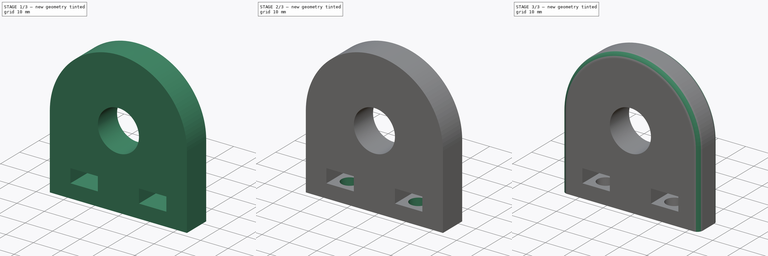
[diagram: build sequence overview — one tinted view per stage of 3, left to right]
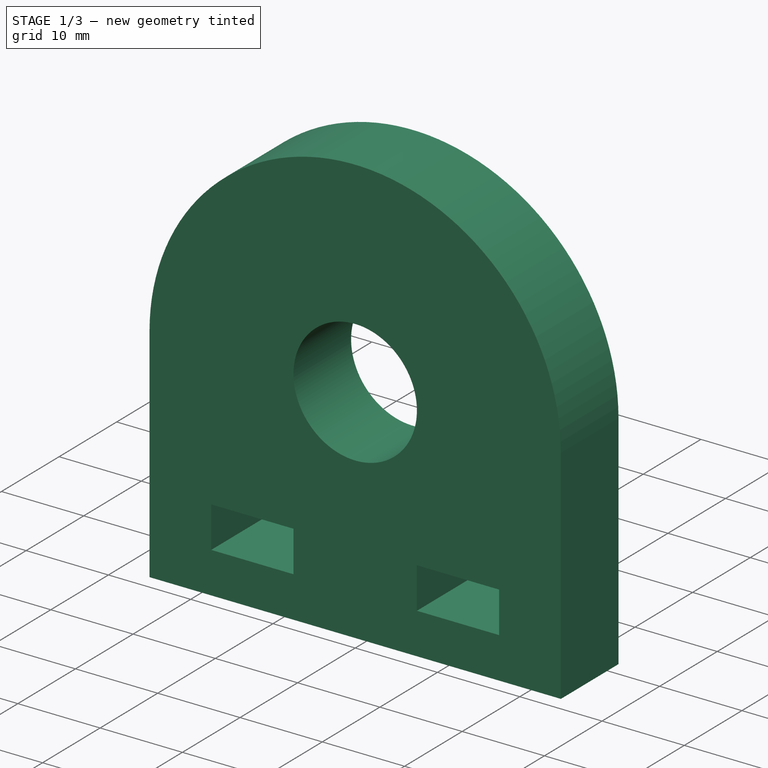
[diagram: stage 1 of 3 — iso view after this stage's code; geometry added in this stage tinted green]
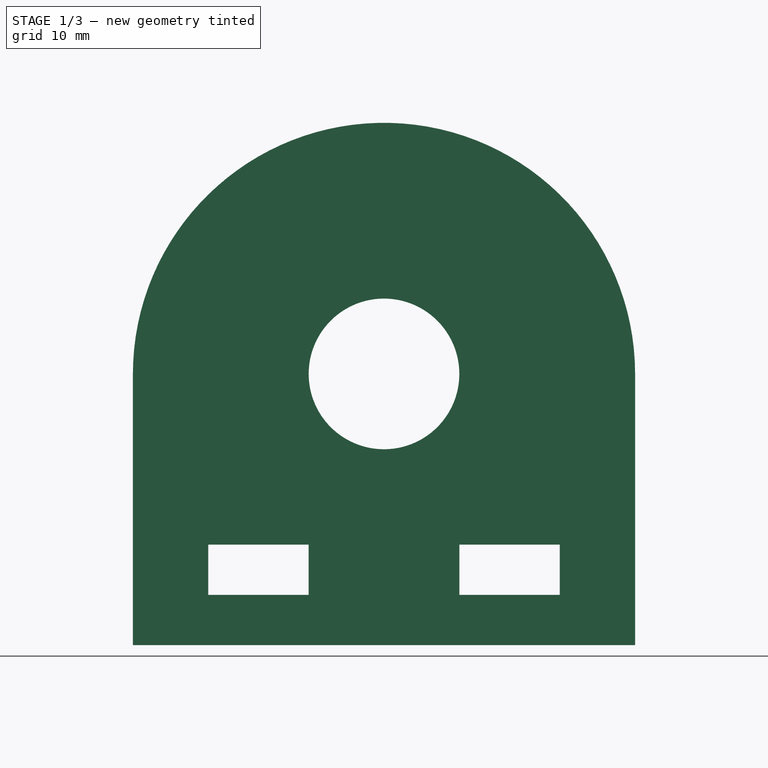
[diagram: stage 1 of 3 — front view after this stage's code; geometry added in this stage tinted green]
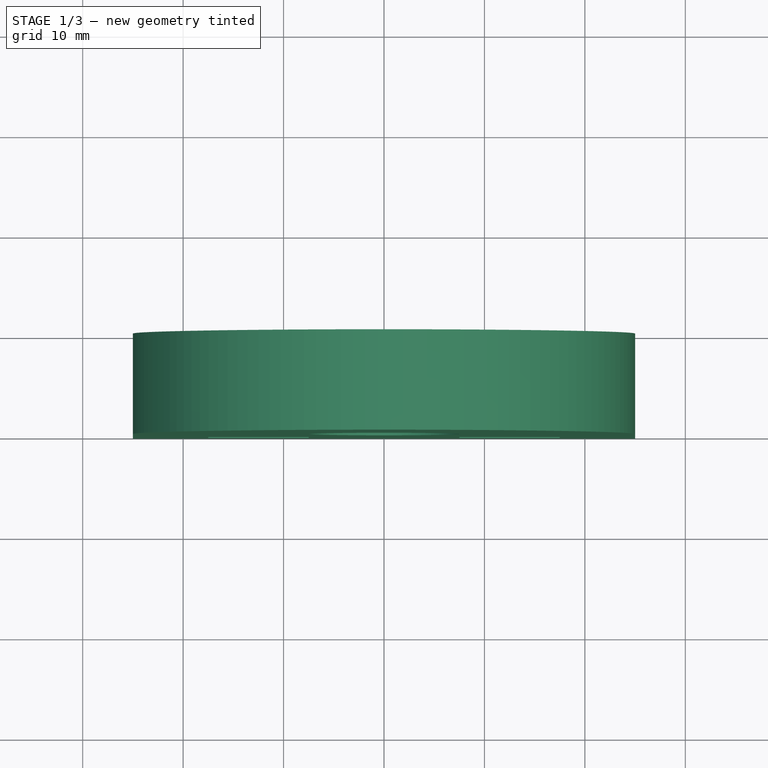
[diagram: stage 1 of 3 — top view after this stage's code; geometry added in this stage tinted green]
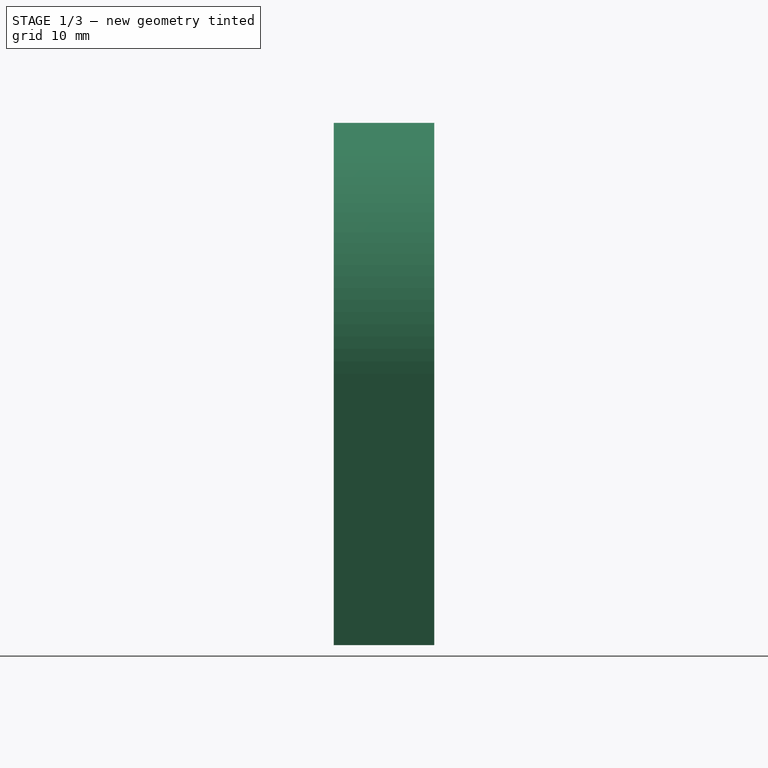
[diagram: stage 1 of 3 — right view after this stage's code; geometry added in this stage tinted green]
FCSTD DOCUMENT  (FreeCAD 0.20R29410 (Git))
Label: BeamMask
License: All rights reserved
LicenseURL: http://en.wikipedia.org/wiki/All_rights_reserved
objects: Sketcher::SketchObject×4, PartDesign::Pocket×3, PartDesign::Fillet×2, PartDesign::Pad×1, PartDesign::Body×1
note: 17 computed .brp shape members not serialized (recipe doc carries the construction recipe); baked Part::Feature solids carry a one-line shape summary decoded from their .brp

FEATURE [Sketcher::SketchObject] Sketch
  FullyConstrained = true
  MapMode = 5
  Placement = pos=(0,0,0) rot=(1,0,0;1.5708rad)
  sketch-geometry (6):
    g0: GeomPoint X=0 Y=27 Z=0
    g1: LineSegment StartX=-25 StartY=0 StartZ=0 EndX=-25 EndY=27 EndZ=0
    g2: ArcOfCircle CenterX=0 CenterY=27 CenterZ=0 NormalX=0 NormalY=0 NormalZ=1 AngleXU=0 Radius=25 StartAngle=0 EndAngle=3.14159
    g3: LineSegment StartX=25 StartY=27 StartZ=0 EndX=25 EndY=0 EndZ=0
    g4: LineSegment StartX=25 StartY=0 StartZ=0 EndX=-25 EndY=0 EndZ=0
    g5: Circle CenterX=0 CenterY=27 CenterZ=0 NormalX=0 NormalY=0 NormalZ=1 AngleXU=0 Radius=7.5
  constraints (15):
    c: PointOnObject(g0,g-2)
    c: PointOnObject(g1,g-1)
    c: Vertical(g1)
    c: Tangent(g1,g2) = 1.5708
    c: Coincident(g2,g3)
    c: PointOnObject(g3,g-1)
    c: Vertical(g3)
    c: Coincident(g3,g4)
    c: Coincident(g4,g1)
    c: Coincident(g2,g0)
    c: DistanceY(g-1,g0) = 27
    c: Distance(g4) = 50
    c: Horizontal(g1,g2)
    c: Coincident(g5,g2)
    c: Diameter(g5) = 15
FEATURE [Sketcher::SketchObject] Sketch002
  FullyConstrained = true
  MapMode = 5
  Placement = pos=(0,-10,-8.9e-15) rot=(1,0,0;1.5708rad)
  sketch-geometry (11):
    g0: LineSegment StartX=-17.5 StartY=10 StartZ=0 EndX=-7.5 EndY=10 EndZ=0
    g1: LineSegment StartX=-7.5 StartY=10 StartZ=0 EndX=-7.5 EndY=5 EndZ=0
    g2: LineSegment StartX=-7.5 StartY=5 StartZ=0 EndX=-17.5 EndY=5 EndZ=0
    g3: LineSegment StartX=-17.5 StartY=5 StartZ=0 EndX=-17.5 EndY=10 EndZ=0
    g4: LineSegment StartX=7.5 StartY=10 StartZ=0 EndX=17.5 EndY=10 EndZ=0
    g5: LineSegment StartX=17.5 StartY=10 StartZ=0 EndX=17.5 EndY=5 EndZ=0
    g6: LineSegment StartX=17.5 StartY=5 StartZ=0 EndX=7.5 EndY=5 EndZ=0
    g7: LineSegment StartX=7.5 StartY=5 StartZ=0 EndX=7.5 EndY=10 EndZ=0
    g8: LineSegment StartX=-12.5 StartY=-5.08223 StartZ=0 EndX=12.5 EndY=-5.08223 EndZ=0
    g9: LineSegment StartX=12.5 StartY=-2.61907 StartZ=0 EndX=12.5 EndY=-16.2522 EndZ=0
    g10: LineSegment StartX=-12.5 StartY=-2.55511 StartZ=0 EndX=-12.5 EndY=-17.2223 EndZ=0
  constraints (30):
    c: Coincident(g0,g1)
    c: Coincident(g1,g2)
    c: Coincident(g2,g3)
    c: Coincident(g3,g0)
    c: Horizontal(g0)
    c: Horizontal(g2)
    c: Vertical(g1)
    c: Vertical(g3)
    c: Coincident(g4,g5)
    c: Coincident(g5,g6)
    c: Coincident(g6,g7)
    c: Coincident(g7,g4)
    c: Horizontal(g4)
    c: Horizontal(g6)
    c: Vertical(g5)
    c: Vertical(g7)
    c: DistanceX(g8,g8) = 25
    c: Symmetric(g8,g8,g-2)
    c: PointOnObject(g8,g9)
    c: PointOnObject(g8,g10)
    c: Symmetric(g5,g6,g9)
    c: DistanceX(g6,g6) = 10
    c: Symmetric(g1,g2,g10)
    c: Equal(g7,g1)
    c: Symmetric(g6,g1,g-2)
    c: DistanceY(g5,g5) = 5
    c: Block(g10)
    c: Block(g9)
    c: DistanceY(g-1,g6) = 5
    c: Block(g8)
FEATURE [PartDesign::Pad] Pad
  Direction = (0,-1,-3e-16)
  Length = 10
  Length2 = 10
  Placement = pos=(0,0,0) rot=(1,0,0;1.5708rad)
  Profile = -> Sketch
  ReferenceAxis = -> Sketch [N_Axis]
  Refine = true
  Type = 0
FEATURE [Sketcher::SketchObject] Sketch001
  FullyConstrained = true
  MapMode = 5
  Placement = pos=(0,0,0) rot=(-1,0,0;1.5708rad)
  Support = -> [Pad]
  sketch-geometry (10):
    g0: Circle CenterX=0 CenterY=-27 CenterZ=0 NormalX=0 NormalY=0 NormalZ=1 AngleXU=0 Radius=7.5
    g1: Circle CenterX=0 CenterY=-13 CenterZ=0 NormalX=0 NormalY=0 NormalZ=1 AngleXU=0 Radius=6.5
    g2: Circle CenterX=14 CenterY=-27 CenterZ=0 NormalX=0 NormalY=0 NormalZ=1 AngleXU=0 Radius=6.5
    g3: Circle CenterX=0 CenterY=-41 CenterZ=0 NormalX=0 NormalY=0 NormalZ=1 AngleXU=0 Radius=6.5
    g4: Circle CenterX=-14 CenterY=-27 CenterZ=0 NormalX=0 NormalY=0 NormalZ=1 AngleXU=0 Radius=6.5
    g5: LineSegment StartX=-48.8972 StartY=-27 StartZ=0 EndX=45.2291 EndY=-27 EndZ=0
    g6: Circle CenterX=14 CenterY=-27 CenterZ=0 NormalX=0 NormalY=0 NormalZ=1 AngleXU=0 Radius=5.25
    g7: Circle CenterX=0 CenterY=-13 CenterZ=0 NormalX=0 NormalY=0 NormalZ=1 AngleXU=0 Radius=5.25
    g8: Circle CenterX=0 CenterY=-41 CenterZ=0 NormalX=0 NormalY=0 NormalZ=1 AngleXU=0 Radius=5.25
    g9: Circle CenterX=-14 CenterY=-27 CenterZ=0 NormalX=0 NormalY=0 NormalZ=1 AngleXU=0 Radius=5.25
  constraints (26):
    c: PointOnObject(g0,g-2)
    c: DistanceY(g-1,g0) = -27
    c: Tangent(g1,g0)
    c: Tangent(g2,g0)
    c: Horizontal(g5)
    c: PointOnObject(g0,g5)
    c: Tangent(g3,g0)
    c: Tangent(g4,g0)
    c: Equal(g2,g1)
    c: Equal(g3,g1)
    c: Equal(g4,g1)
    c: Diameter(g1) = 13
    c: Diameter(g0) = 15
    c: Coincident(g6,g2)
    c: Coincident(g7,g1)
    c: Coincident(g8,g3)
    c: Coincident(g9,g4)
    c: Equal(g6,g7)
    c: Equal(g8,g7)
    c: Equal(g9,g7)
    c: Diameter(g7) = 10.5
    c: Block(g5)
    c: PointOnObject(g8,g-2)
    c: PointOnObject(g9,g5)
    c: PointOnObject(g7,g-2)
    c: PointOnObject(g6,g5)
FEATURE [PartDesign::Pocket] Pocket001
  BaseFeature = -> Pad
  Direction = (0,1,7e-16)
  Length = 5
  Length2 = 5
  Placement = pos=(0,0,0) rot=(1,0,0;1.5708rad)
  Profile = -> Sketch002
  ReferenceAxis = -> Sketch002 [N_Axis]
  Refine = true
  Type = 1
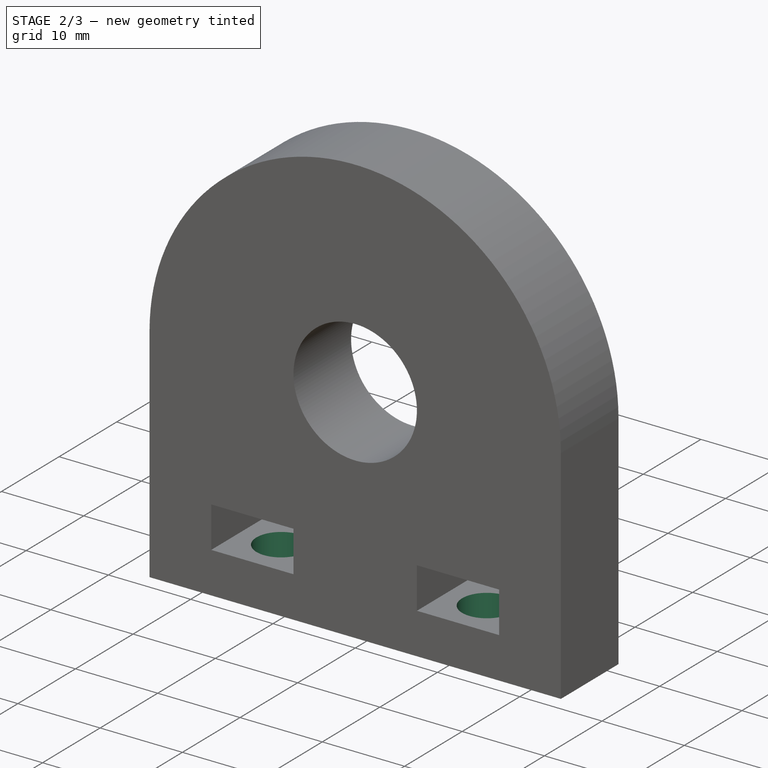
[diagram: stage 2 of 3 — iso view after this stage's code; geometry added in this stage tinted green]
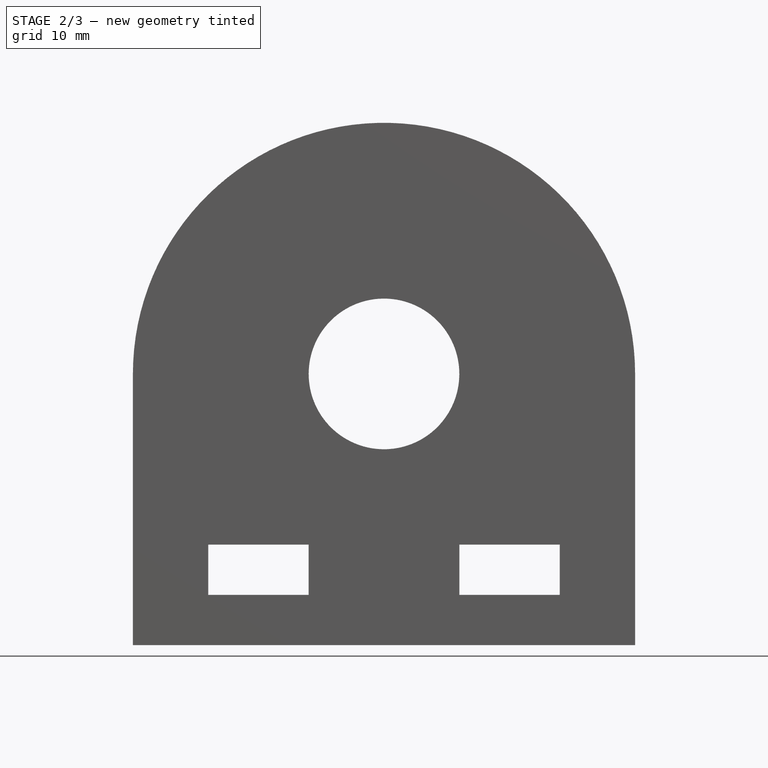
[diagram: stage 2 of 3 — front view after this stage's code; geometry added in this stage tinted green]
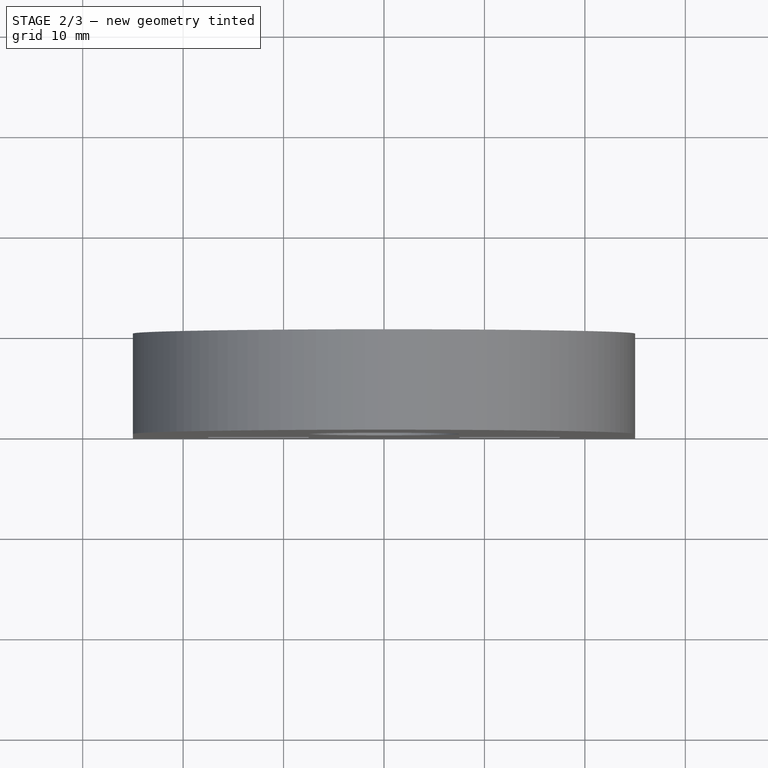
[diagram: stage 2 of 3 — top view after this stage's code; geometry added in this stage tinted green]
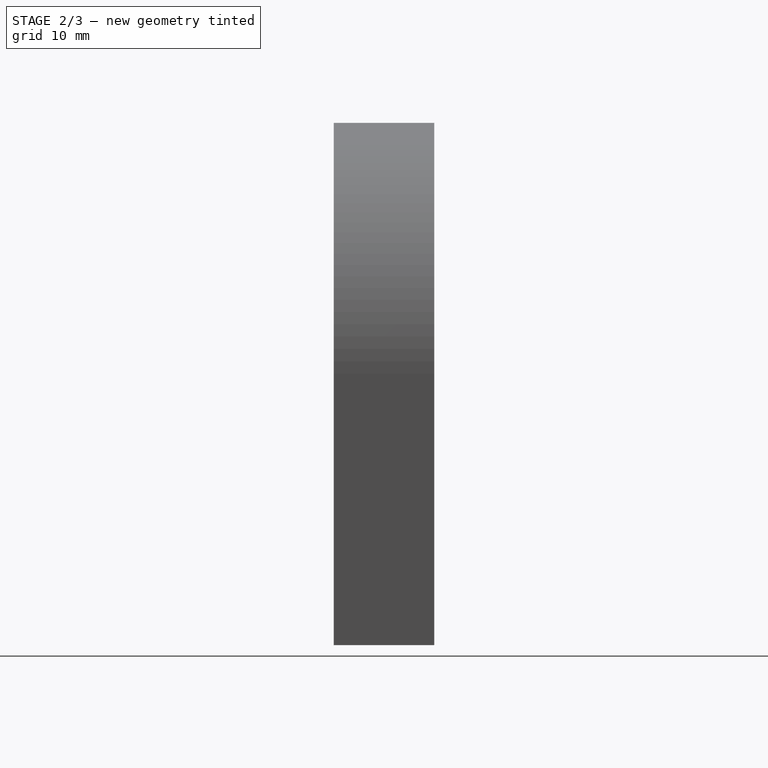
[diagram: stage 2 of 3 — right view after this stage's code; geometry added in this stage tinted green]
FEATURE [Sketcher::SketchObject] Sketch003
  FullyConstrained = true
  MapMode = 5
  Placement = pos=(0,0,0) rot=(1,0,0;3.14159rad)
  Support = -> [Pocket001]
  sketch-geometry (4):
    g0: LineSegment StartX=-12.5 StartY=5 StartZ=0 EndX=12.5 EndY=5 EndZ=0
    g1: LineSegment StartX=-31.5301 StartY=0 StartZ=0 EndX=-31.5301 EndY=5 EndZ=0
    g2: Circle CenterX=-12.5 CenterY=5 CenterZ=0 NormalX=0 NormalY=0 NormalZ=1 AngleXU=0 Radius=3
    g3: Circle CenterX=12.5 CenterY=5 CenterZ=0 NormalX=0 NormalY=0 NormalZ=1 AngleXU=0 Radius=3
  constraints (11):
    c: DistanceX(g0,g0) = 25
    c: PointOnObject(g1,g-1)
    c: Vertical(g1)
    c: DistanceY(g1,g1) = 5
    c: Symmetric(g0,g0,g-2)
    c: Block(g1)
    c: Coincident(g2,g0)
    c: Coincident(g3,g0)
    c: Equal(g2,g3)
    c: Diameter(g3) = 6
    c: DistanceY(g-1,g2) = 5
FEATURE [PartDesign::Pocket] Pocket002
  BaseFeature = -> Pocket001
  Direction = (0,-8e-16,1)
  Length = 15
  Length2 = 5
  Placement = pos=(0,0,0) rot=(1,0,0;1.5708rad)
  Profile = -> Sketch003
  ReferenceAxis = -> Sketch003 [N_Axis]
  Refine = true
  Type = 0
FEATURE [PartDesign::Pocket] Pocket
  BaseFeature = -> Pocket002
  Direction = (0,-1,-7e-16)
  Length = 7
  Length2 = 5
  Placement = pos=(0,0,0) rot=(1,0,0;1.5708rad)
  Profile = -> Sketch001
  ReferenceAxis = -> Sketch001 [N_Axis]
  Refine = true
  Type = 0
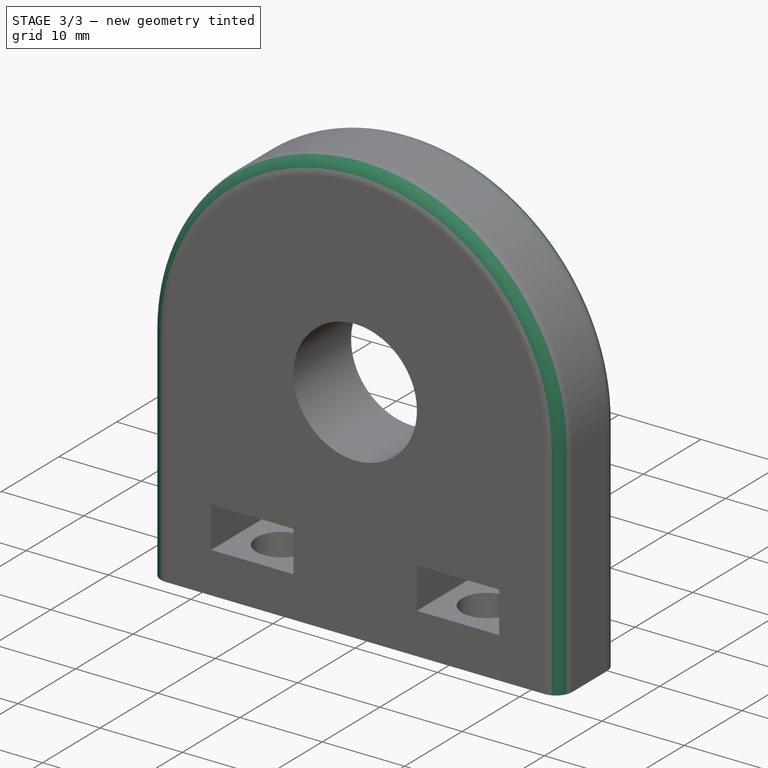
[diagram: stage 3 of 3 — iso view after this stage's code; geometry added in this stage tinted green]
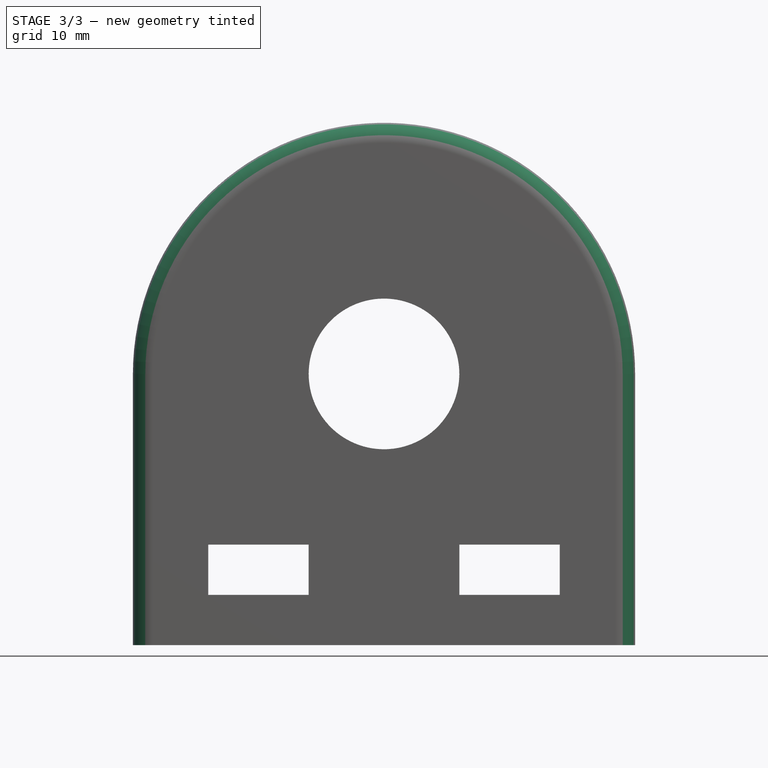
[diagram: stage 3 of 3 — front view after this stage's code; geometry added in this stage tinted green]
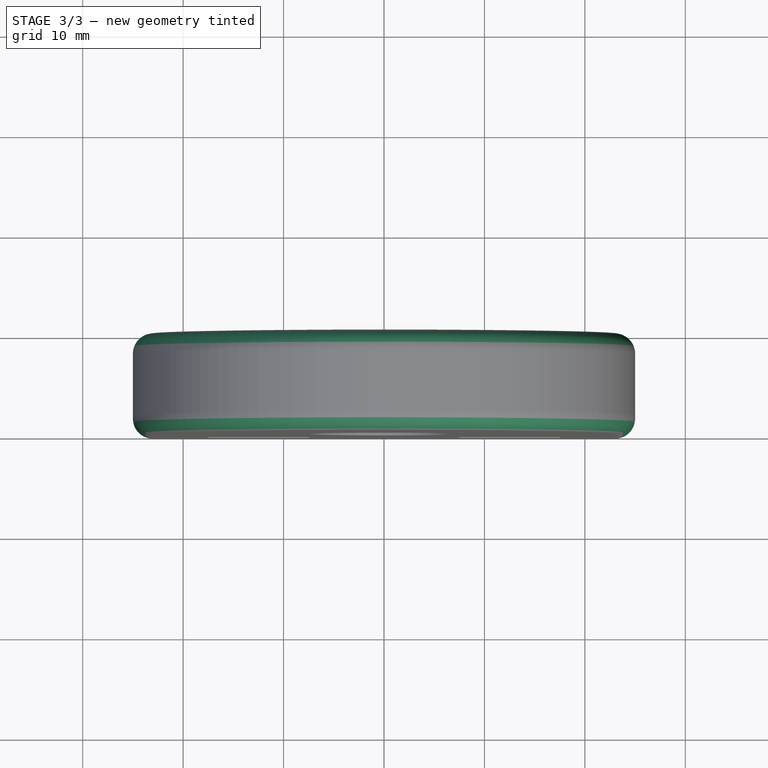
[diagram: stage 3 of 3 — top view after this stage's code; geometry added in this stage tinted green]
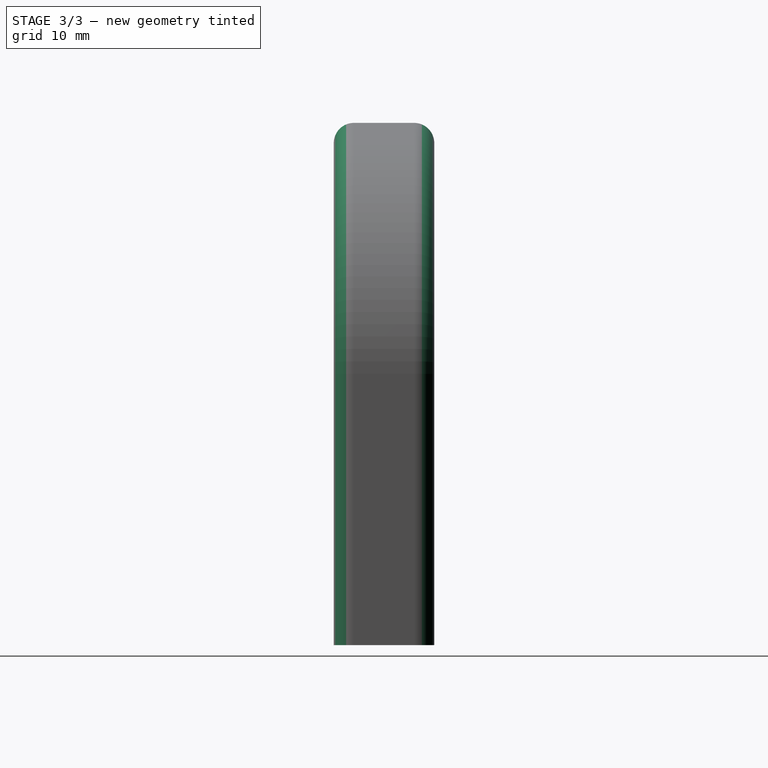
[diagram: stage 3 of 3 — right view after this stage's code; geometry added in this stage tinted green]
FEATURE [PartDesign::Fillet] Fillet
  Base = -> Pocket [Edge3]
  BaseFeature = -> Pocket
  Placement = pos=(0,0,0) rot=(1,0,0;1.5708rad)
  Radius = 2
  Refine = true
  SupportTransform = false
  UseAllEdges = false
FEATURE [PartDesign::Fillet] Fillet001
  Base = -> Fillet [Edge15]
  BaseFeature = -> Fillet
  Placement = pos=(0,0,0) rot=(1,0,0;1.5708rad)
  Radius = 2
  Refine = true
  SupportTransform = false
  UseAllEdges = false
FEATURE [PartDesign::Body] Body
  Group = -> [Sketch,Pad,Sketch001,Sketch002,Pocket001,Sketch003,Pocket002,Pocket,Fillet,Fillet001]
  Origin = -> Origin
  Tip = -> Fillet001
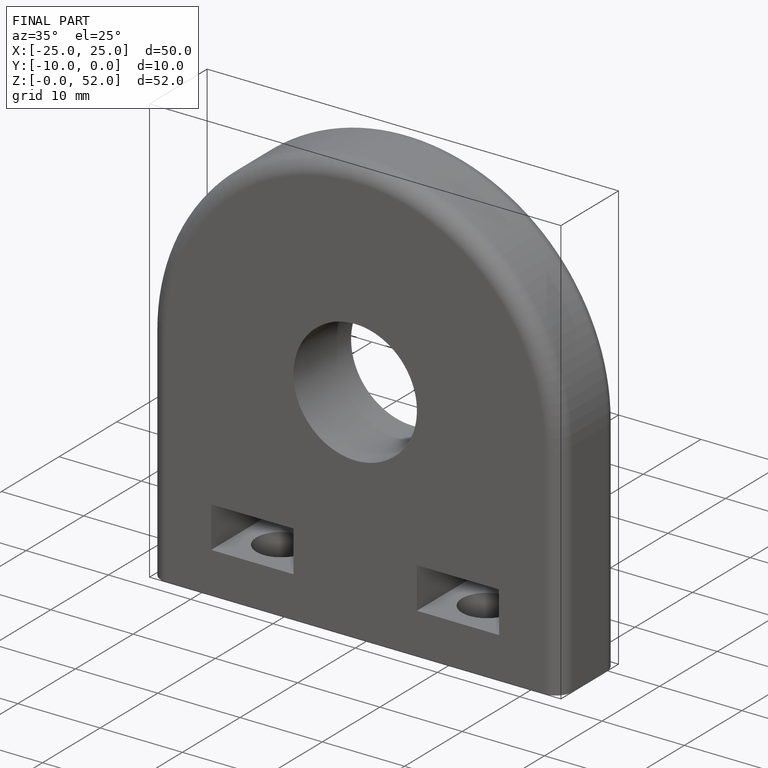
[diagram: finished part — iso view with bounding-box wireframe]
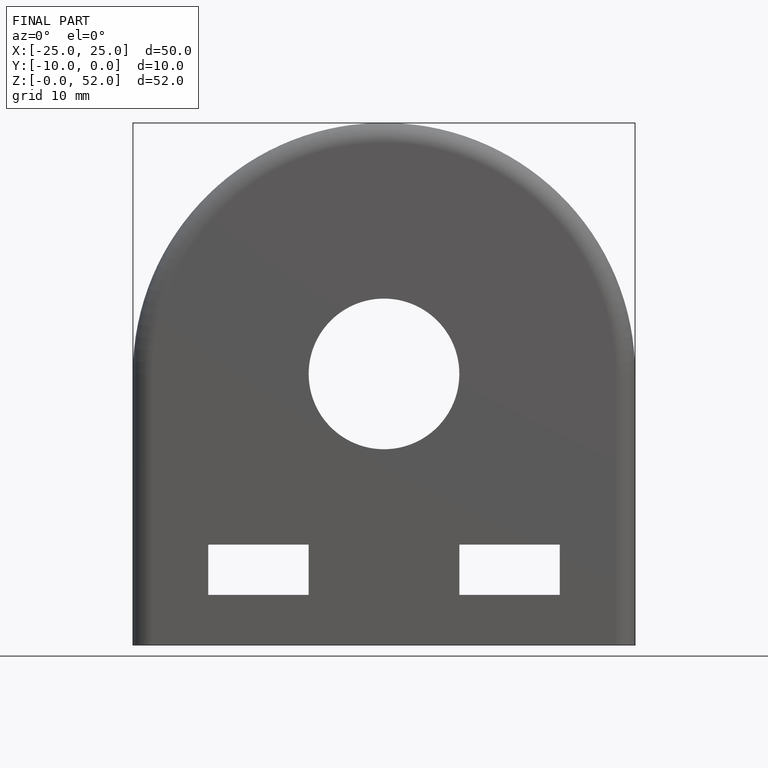
[diagram: finished part — front view with bounding-box wireframe]
